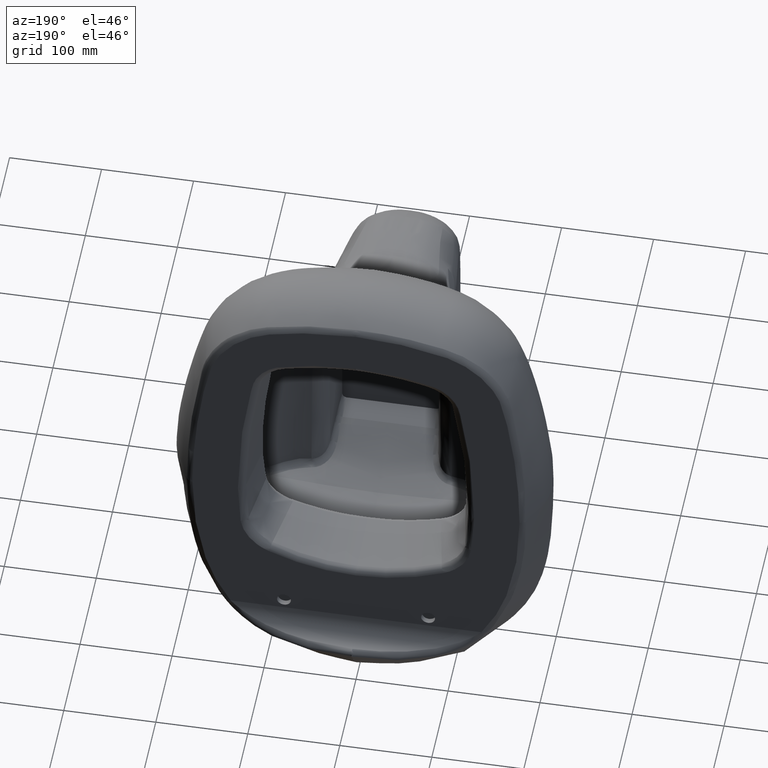
[diagram: clean part render]
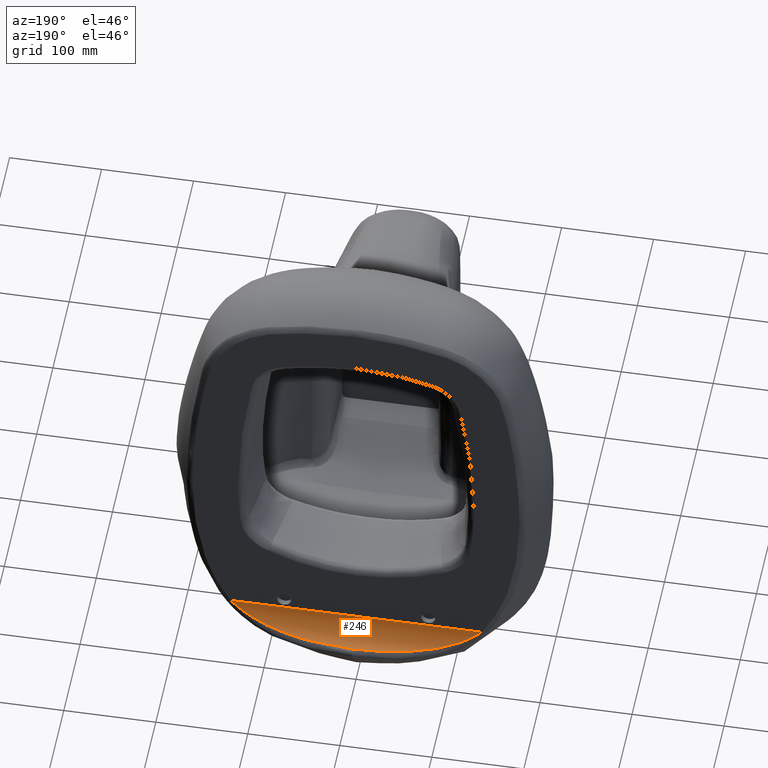
[diagram: same view with one face highlighted and labeled with its STEP entity id]
A machine part, auxiliary view. The second image highlights one B-rep face of the part: STEP entity #246.
In plain terms, the highlighted cylindrical surface (edge-blend (fillet) strip) has radius 26.8571 mm, axis along (1, 0, 0).
Its self-contained STEP definition (entity closure, byte-faithful):
#47=CYLINDRICAL_SURFACE('',#3109,26.8570832372919);
#108=LINE('',#9407,#124);
#124=VECTOR('',#3165,1.);
#187=(
BOUNDED_CURVE()
B_SPLINE_CURVE(3,(#9904,#9905,#9906,#9907,#9908,#9909,#9910,#9911,#9912,
#9913,#9914,#9915,#9916,#9917,#9918,#9919,#9920,#9921,#9922,#9923,#9924,
#9925,#9926,#9927),.UNSPECIFIED.,.F.,.F.)
B_SPLINE_CURVE_WITH_KNOTS((4,2,2,2,2,2,2,2,2,2,2,4),(0.,0.0656262282289659,
0.131252456457932,0.196878684686898,0.262504912915864,0.393757369373796,
0.525009825831728,0.656262282289659,0.787514738747591,0.918767195205523,
0.984393423434489,1.),.UNSPECIFIED.)
CURVE()
GEOMETRIC_REPRESENTATION_ITEM()
RATIONAL_B_SPLINE_CURVE((1.,1.,1.,1.,1.,1.,1.,1.,1.,1.,1.,1.,1.,1.,1.,1.,
1.,1.,1.,1.,1.,1.,1.,1.))
REPRESENTATION_ITEM('')
);
#246=ADVANCED_FACE('',(#466),#47,.F.);
#466=FACE_OUTER_BOUND('',#615,.T.);
#615=EDGE_LOOP('',(#863,#864,#865));
#863=ORIENTED_EDGE('',*,*,#2244,.T.);
#864=ORIENTED_EDGE('',*,*,#2249,.T.);
#865=ORIENTED_EDGE('',*,*,#2250,.F.);
#1861=VERTEX_POINT('',#9406);
#1862=VERTEX_POINT('',#9408);
#1866=VERTEX_POINT('',#9903);
#2244=EDGE_CURVE('',#1862,#1861,#108,.T.);
#2249=EDGE_CURVE('',#1861,#1866,#2749,.T.);
#2250=EDGE_CURVE('',#1862,#1866,#187,.T.);
#2749=B_SPLINE_CURVE_WITH_KNOTS('',3,(#9855,#9856,#9857,#9858,#9859,#9860,
#9861,#9862,#9863,#9864,#9865,#9866,#9867,#9868,#9869,#9870,#9871,#9872,
#9873,#9874,#9875,#9876,#9877,#9878,#9879,#9880,#9881,#9882,#9883,#9884,
#9885,#9886,#9887,#9888,#9889,#9890,#9891,#9892,#9893,#9894,#9895,#9896,
#9897,#9898,#9899,#9900,#9901,#9902),.UNSPECIFIED.,.F.,.F.,(4,2,2,1,2,2,
2,2,2,1,1,2,2,2,2,2,1,2,2,2,2,2,2,2,2,4),(0.,0.124999999999996,0.128906249999996,
0.132812499999996,0.140624999999995,0.156249999999995,0.187499999999994,
0.249999999999992,0.253906249999992,0.257812499999992,0.265624999999992,
0.281249999999992,0.312499999999992,0.374999999999991,0.49999999999999,
0.50781249999999,0.51562499999999,0.531249999999991,0.562499999999991,0.624999999999992,
0.749999999999995,0.765624999999995,0.781249999999995,0.812499999999996,
0.874999999999997,1.),.UNSPECIFIED.);
#3109=AXIS2_PLACEMENT_3D('',#9928,#3170,#3171);
#3165=DIRECTION('',(1.,0.,0.));
#3170=DIRECTION('',(1.,0.,0.));
#3171=DIRECTION('',(0.,0.,1.));
#9406=CARTESIAN_POINT('',(136.342963460415,6.77495212708657E-9,85.3341328097039));
#9407=CARTESIAN_POINT('',(-204.539872197906,6.77495212708657E-9,85.3341328097039));
#9408=CARTESIAN_POINT('',(-136.342963460415,6.77495212708657E-9,85.3341328097039));
#9855=CARTESIAN_POINT('',(136.34296345555,6.77500069934389E-9,85.3341328097039));
#9856=CARTESIAN_POINT('',(133.063034385922,6.77487195033591E-9,81.4647193119256));
#9857=CARTESIAN_POINT('',(128.454576388059,0.84552428180264,77.7190653641283));
#9858=CARTESIAN_POINT('',(122.332058620521,2.37731631168307,74.2861960314489));
#9859=CARTESIAN_POINT('',(122.222543866555,2.40489817789002,74.2255020525515));
#9860=CARTESIAN_POINT('',(121.925419909556,2.47995312564055,74.0617524489005));
#9861=CARTESIAN_POINT('',(121.477655612464,2.59358469912051,73.817101031125));
#9862=CARTESIAN_POINT('',(121.023656230594,2.71030981376107,73.5753888882704));
#9863=CARTESIAN_POINT('',(120.107344020484,2.94774150730728,73.0959335758382));
#9864=CARTESIAN_POINT('',(119.485384618582,3.11133766499492,72.7815901092424));
#9865=CARTESIAN_POINT('',(117.586252627394,3.61691323902762,71.8547862564012));
#9866=CARTESIAN_POINT('',(116.275826252624,3.97367390762793,71.258573933457));
#9867=CARTESIAN_POINT('',(112.211531986379,5.09415839980137,69.5368715176585));
#9868=CARTESIAN_POINT('',(109.32464895297,5.90794682262149,68.4786069751957));
#9869=CARTESIAN_POINT('',(106.068897612233,6.81971626209314,67.4508060422234));
#9870=CARTESIAN_POINT('',(105.942827734329,6.8550137525809,67.4113937384053));
#9871=CARTESIAN_POINT('',(105.62424923034,6.9441907190254,67.3123662190992));
#9872=CARTESIAN_POINT('',(105.14538763302,7.07819834603881,67.1646676634291));
#9873=CARTESIAN_POINT('',(104.021087016583,7.39249857833896,66.825916656643));
#9874=CARTESIAN_POINT('',(103.045474677884,7.66439845056793,66.5455654689881));
#9875=CARTESIAN_POINT('',(101.0783485391,8.21083578386543,65.9979919122749));
#9876=CARTESIAN_POINT('',(99.7457291647302,8.57863463822545,65.6504550477289));
#9877=CARTESIAN_POINT('',(95.6842651960798,9.68733255238888,64.6583906020909));
#9878=CARTESIAN_POINT('',(92.8918147562578,10.4333832300217,64.0644863069207));
#9879=CARTESIAN_POINT('',(84.2600400546259,12.6559610873717,62.4657592893842));
#9880=CARTESIAN_POINT('',(78.1662924106505,14.1148019943601,61.6442129215889));
#9881=CARTESIAN_POINT('',(71.3312524141922,15.5665552162551,60.9653867599188));
#9882=CARTESIAN_POINT('',(71.017281207813,15.6327304898483,60.934877739308));
#9883=CARTESIAN_POINT('',(70.2999458008299,15.7830227482039,60.8662982738211));
#9884=CARTESIAN_POINT('',(69.2226396660134,16.00717023037,60.7652747607774));
#9885=CARTESIAN_POINT('',(68.1414244581716,16.2273497726364,60.6696548565553));
#9886=CARTESIAN_POINT('',(65.9737819451206,16.6621818746514,60.4852686199004));
#9887=CARTESIAN_POINT('',(64.5217374732636,16.9446949885222,60.3714803694188));
#9888=CARTESIAN_POINT('',(60.1447556682238,17.7684322622991,60.0547836404804));
#9889=CARTESIAN_POINT('',(57.1989699455722,18.2857791867774,59.8764966097662));
#9890=CARTESIAN_POINT('',(48.2782192197416,19.7319806219653,59.4196941875102));
#9891=CARTESIAN_POINT('',(42.2198606586873,20.5542329051146,59.2182520248846));
#9892=CARTESIAN_POINT('',(35.279116940688,21.3020496095841,59.057684349104));
#9893=CARTESIAN_POINT('',(34.578598734297,21.3750370559003,59.0423875970086));
#9894=CARTESIAN_POINT('',(33.1039463628362,21.5239334126007,59.0117809084468));
#9895=CARTESIAN_POINT('',(32.3656400375641,21.5959821347847,58.9972998124402));
#9896=CARTESIAN_POINT('',(30.1477806431223,21.8048859746968,58.9561425235176));
#9897=CARTESIAN_POINT('',(28.6652871553273,21.9344972078838,58.9317483177657));
#9898=CARTESIAN_POINT('',(24.2060450174411,22.2940664913165,58.866394737769));
#9899=CARTESIAN_POINT('',(21.2175346928485,22.4947420515736,58.833198631084));
#9900=CARTESIAN_POINT('',(12.2049570210654,22.9781219060034,58.7566417510984));
#9901=CARTESIAN_POINT('',(6.1338429758696,23.1420233127563,58.7352368217908));
#9902=CARTESIAN_POINT('',(0.,23.1462315785118,58.7346497333146));
#9903=CARTESIAN_POINT('',(0.,23.1462315785115,58.7346497333147));
#9904=CARTESIAN_POINT('',(-136.34296345555,6.77496600487437E-9,85.3341328097039));
#9905=CARTESIAN_POINT('',(-134.312224209942,6.7748799972288E-9,82.9384194632822));
#9906=CARTESIAN_POINT('',(-131.977424744894,0.311010779874432,80.8273319051161));
#9907=CARTESIAN_POINT('',(-127.065635610605,1.22459846674342,77.0890772120722));
#9908=CARTESIAN_POINT('',(-124.46611006515,1.83382231855353,75.4439895981064));
#9909=CARTESIAN_POINT('',(-119.018943302301,3.21904152476452,72.4802811002451));
#9910=CARTESIAN_POINT('',(-116.189490898383,3.9922815397409,71.1758720451566));
#9911=CARTESIAN_POINT('',(-110.458716438615,5.58504350552803,68.8794729767843));
#9912=CARTESIAN_POINT('',(-107.538525178337,6.41022132312682,67.8783970514904));
#9913=CARTESIAN_POINT('',(-98.6260876930158,8.89772593713893,65.2179647308733));
#9914=CARTESIAN_POINT('',(-92.6190507516248,10.5301151108819,63.9325519848561));
#9915=CARTESIAN_POINT('',(-80.504013960107,13.5582471005995,61.9303188586886));
#9916=CARTESIAN_POINT('',(-74.3869677123667,14.9609543517994,61.2168346560585));
#9917=CARTESIAN_POINT('',(-62.0285854460983,17.4645658463081,60.1360660230223));
#9918=CARTESIAN_POINT('',(-55.7675729453517,18.5701702397229,59.7692632332503));
#9919=CARTESIAN_POINT('',(-43.217166467382,20.4276558562148,59.2401115200102));
#9920=CARTESIAN_POINT('',(-36.9485236173993,21.1807437181379,59.0772405663126));
#9921=CARTESIAN_POINT('',(-24.3845711501435,22.3295658415132,58.8549559557255));
#9922=CARTESIAN_POINT('',(-18.09226947887,22.7253142852894,58.7958626552915));
#9923=CARTESIAN_POINT('',(-8.60986004088876,23.0517149335724,58.7477794228259));
#9924=CARTESIAN_POINT('',(-5.44187211641758,23.1163473677442,58.7388269336361));
#9925=CARTESIAN_POINT('',(-1.51154447532376,23.1431918139523,58.7350734733484));
#9926=CARTESIAN_POINT('',(-0.773449043950764,23.145700930834,58.7347237269057));
#9927=CARTESIAN_POINT('',(5.2787093272888E-15,23.1462315781418,58.7346497306617));
#9928=CARTESIAN_POINT('',(-204.539872197906,26.8570832440669,85.334132809703));